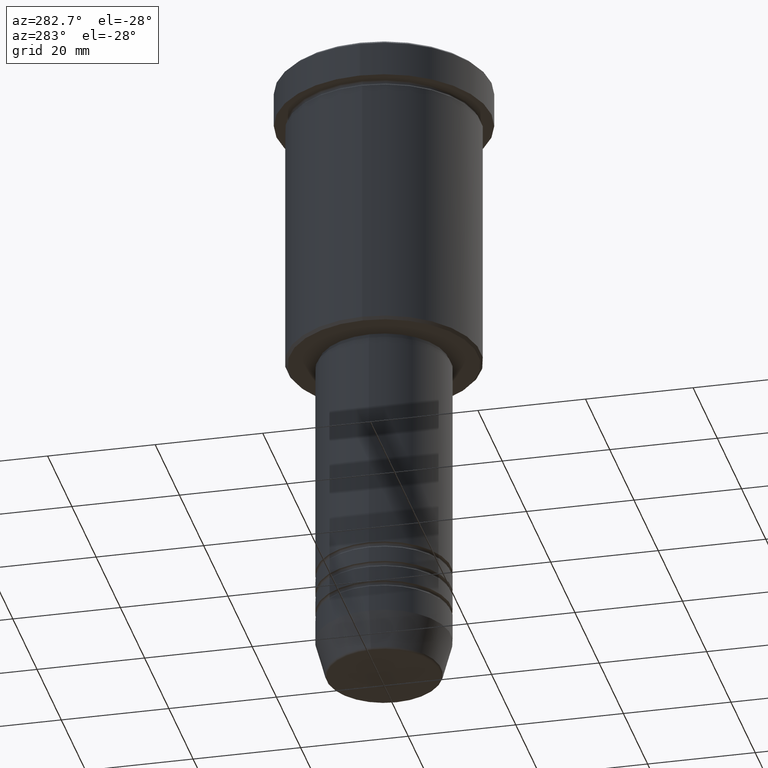
[diagram: clean part render]
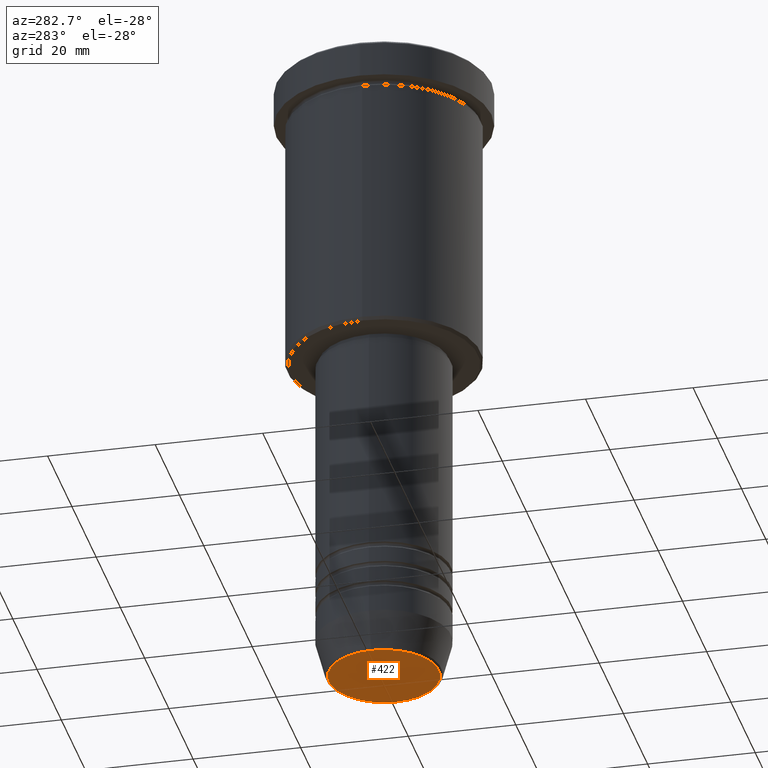
[diagram: same view with one face highlighted and labeled with its STEP entity id]
A machine part, auxiliary view. The second image highlights one B-rep face of the part: STEP entity #422.
In plain terms, the highlighted planar face has unit normal (0, -0, 1).
Its self-contained STEP definition (entity closure, byte-faithful):
#92 = VERTEX_POINT ( 'NONE', #418 ) ;
#108 = ORIENTED_EDGE ( 'NONE', *, *, #800, .T. ) ;
#143 = EDGE_CURVE ( 'NONE', #448, #92, #550, .T. ) ;
#249 = DIRECTION ( 'NONE',  ( 1.000000000000000000, 0.000000000000000000, 0.000000000000000000 ) ) ;
#267 = CARTESIAN_POINT ( 'NONE',  ( 10.24069215899265473, 0.000000000000000000, -120.0000000000000000 ) ) ;
#315 = AXIS2_PLACEMENT_3D ( 'NONE', #1039, #1052, #249 ) ;
#378 = DIRECTION ( 'NONE',  ( 0.000000000000000000, 0.000000000000000000, -1.000000000000000000 ) ) ;
#379 = PLANE ( 'NONE',  #823 ) ;
#418 = CARTESIAN_POINT ( 'NONE',  ( -10.24069215899265473, 1.283696036640841981E-15, -120.0000000000000000 ) ) ;
#422 = ADVANCED_FACE ( 'NONE', ( #1103 ), #379, .F. ) ;
#448 = VERTEX_POINT ( 'NONE', #267 ) ;
#542 = DIRECTION ( 'NONE',  ( 1.000000000000000000, 0.000000000000000000, 0.000000000000000000 ) ) ;
#545 = ORIENTED_EDGE ( 'NONE', *, *, #143, .T. ) ;
#550 = CIRCLE ( 'NONE', #944, 10.24069215899265473 ) ;
#624 = DIRECTION ( 'NONE',  ( 1.000000000000000000, 0.000000000000000000, 0.000000000000000000 ) ) ;
#757 = EDGE_LOOP ( 'NONE', ( #545, #108 ) ) ;
#798 = CARTESIAN_POINT ( 'NONE',  ( 0.000000000000000000, 0.000000000000000000, -120.0000000000000000 ) ) ;
#800 = EDGE_CURVE ( 'NONE', #92, #448, #1112, .T. ) ;
#802 = DIRECTION ( 'NONE',  ( 0.000000000000000000, -0.000000000000000000, 1.000000000000000000 ) ) ;
#823 = AXIS2_PLACEMENT_3D ( 'NONE', #798, #802, #542 ) ;
#944 = AXIS2_PLACEMENT_3D ( 'NONE', #1097, #378, #624 ) ;
#1039 = CARTESIAN_POINT ( 'NONE',  ( 0.000000000000000000, 0.000000000000000000, -120.0000000000000000 ) ) ;
#1052 = DIRECTION ( 'NONE',  ( 0.000000000000000000, 0.000000000000000000, -1.000000000000000000 ) ) ;
#1097 = CARTESIAN_POINT ( 'NONE',  ( 0.000000000000000000, 0.000000000000000000, -120.0000000000000000 ) ) ;
#1103 = FACE_OUTER_BOUND ( 'NONE', #757, .T. ) ;
#1112 = CIRCLE ( 'NONE', #315, 10.24069215899265473 ) ;